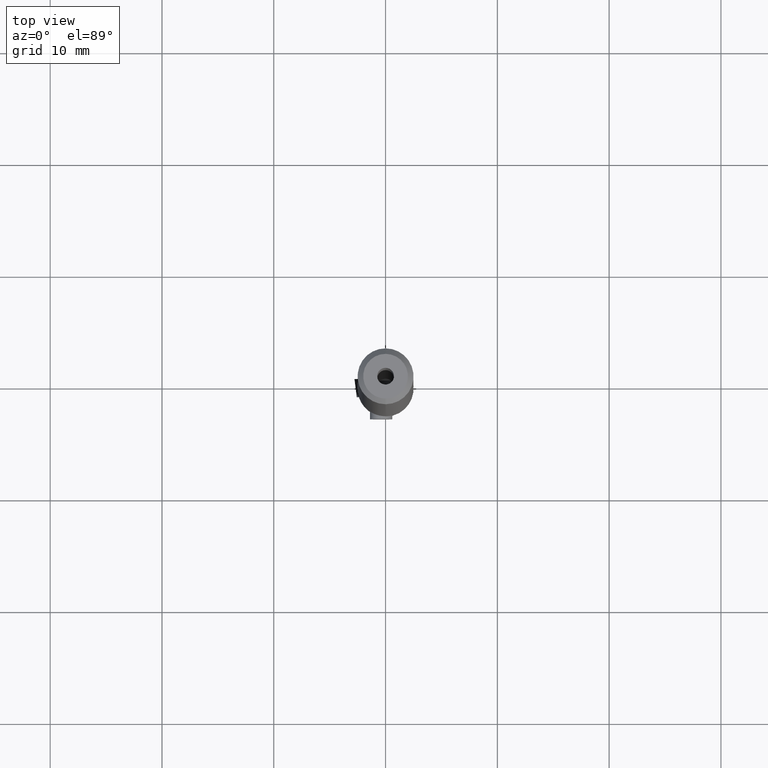
[diagram: clean part render]
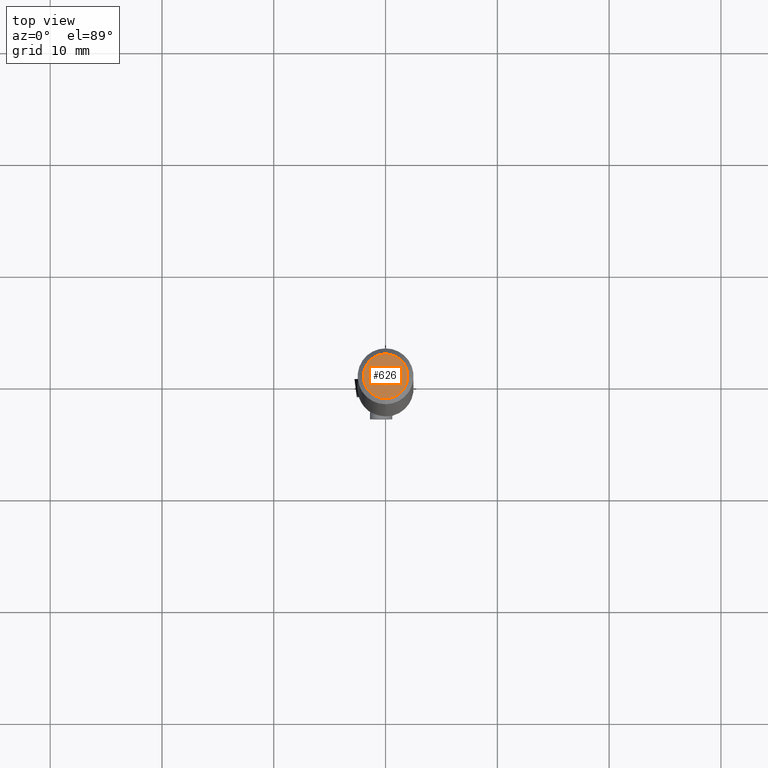
[diagram: same view with one face highlighted and labeled with its STEP entity id]
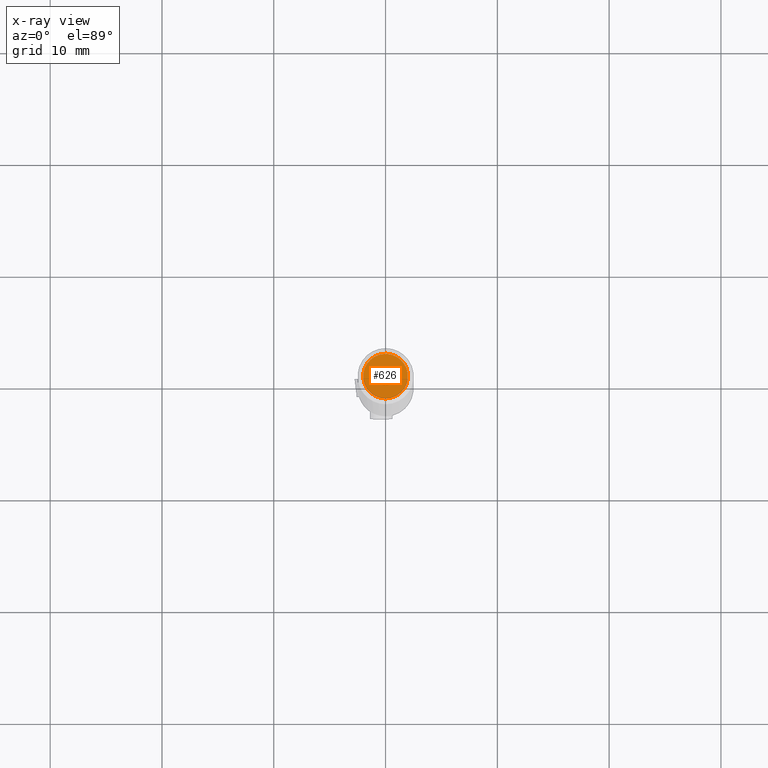
[diagram: x-ray of the same camera — body ghosted, the highlighted face saturated]
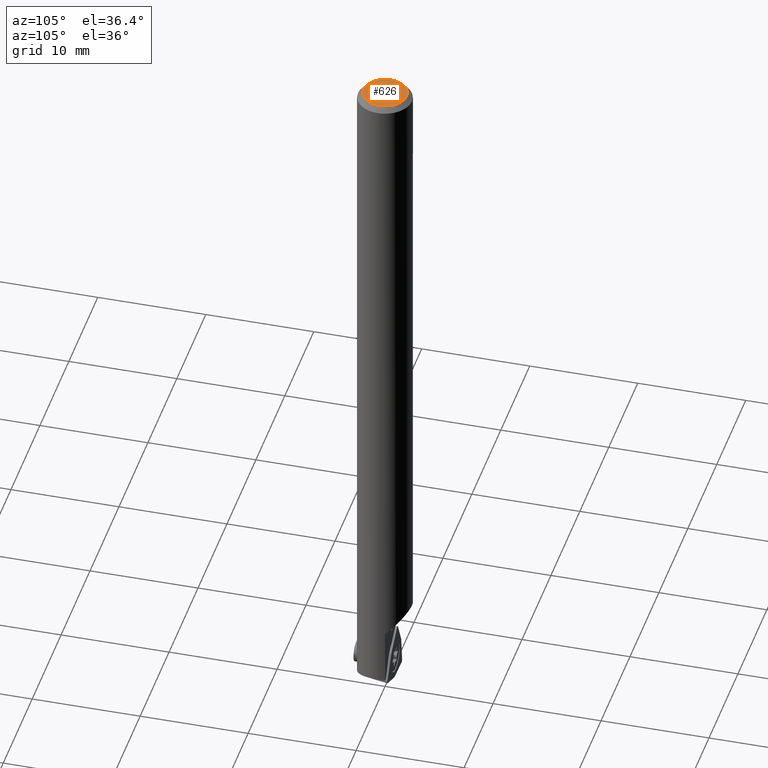
[diagram: same view with one face highlighted and labeled with its STEP entity id]
A machine part, top view. The second image highlights one B-rep face of the part: STEP entity #626.
The next image is the same camera in x-ray: the body ghosted, the highlighted face saturated — about 0% of this face is hidden behind the body in this view.
A second angle (auxiliary view) of the same face is appended — the face is thin or edge-on in the first view.
In plain terms, the highlighted planar face has unit normal (0, 0, -1).
Its self-contained STEP definition (entity closure, byte-faithful):
#568=VERTEX_POINT('NONE',#1607);
#584=EDGE_CURVE('NONE',#948,#1436,#1625,.T.);
#626=ADVANCED_FACE('NONE',(#1672,#1673),#1674,.F.);
#818=VERTEX_POINT('NONE',#1890);
#820=EDGE_CURVE('NONE',#568,#818,#1892,.T.);
#948=VERTEX_POINT('NONE',#2033);
#1190=EDGE_CURVE('NONE',#1436,#948,#2298,.T.);
#1288=EDGE_CURVE('NONE',#818,#568,#2404,.T.);
#1436=VERTEX_POINT('NONE',#2564);
#1607=CARTESIAN_POINT('',(-2.75545529808154E-016,2.0,0.0));
#1625=CIRCLE('',#2775,0.75);
#1672=FACE_OUTER_BOUND('',#2836,.T.);
#1673=FACE_BOUND('',#2837,.T.);
#1674=PLANE('',#2838);
#1890=CARTESIAN_POINT('',(0.0,-2.0,0.0));
#1892=CIRCLE('',#3178,2.0);
#2033=CARTESIAN_POINT('',(0.0,0.75,0.0));
#2298=CIRCLE('',#3832,0.75);
#2404=CIRCLE('',#3982,2.0);
#2564=CARTESIAN_POINT('',(-9.18485099360515E-017,-0.75,0.0));
#2775=AXIS2_PLACEMENT_3D('',#4459,#4460,#4461);
#2836=EDGE_LOOP('',(#4525,#4526));
#2837=EDGE_LOOP('',(#4527,#4528));
#2838=AXIS2_PLACEMENT_3D('',#4529,#4530,#4531);
#3178=AXIS2_PLACEMENT_3D('',#4809,#4810,#4811);
#3832=AXIS2_PLACEMENT_3D('',#5278,#5279,#5280);
#3982=AXIS2_PLACEMENT_3D('',#5389,#5390,#5391);
#4459=CARTESIAN_POINT('',(0.0,0.0,0.0));
#4460=DIRECTION('',(0.0,-0.0,1.0));
#4461=DIRECTION('',(0.0,1.0,0.0));
#4525=ORIENTED_EDGE('',*,*,#1288,.T.);
#4526=ORIENTED_EDGE('',*,*,#820,.T.);
#4527=ORIENTED_EDGE('',*,*,#584,.F.);
#4528=ORIENTED_EDGE('',*,*,#1190,.F.);
#4529=CARTESIAN_POINT('',(-0.75,0.0,0.0));
#4530=DIRECTION('',(0.0,0.0,-1.0));
#4531=DIRECTION('',(-1.0,0.0,0.0));
#4809=CARTESIAN_POINT('',(0.0,0.0,0.0));
#4810=DIRECTION('',(0.0,-0.0,1.0));
#4811=DIRECTION('',(0.0,1.0,0.0));
#5278=CARTESIAN_POINT('',(0.0,0.0,0.0));
#5279=DIRECTION('',(0.0,-0.0,1.0));
#5280=DIRECTION('',(0.0,1.0,0.0));
#5389=CARTESIAN_POINT('',(0.0,0.0,0.0));
#5390=DIRECTION('',(0.0,-0.0,1.0));
#5391=DIRECTION('',(0.0,1.0,0.0));